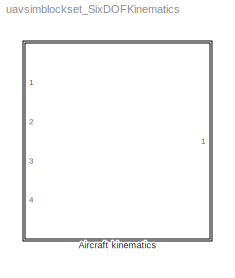
MODEL uavsimblockset_SixDOFKinematics
KIND library
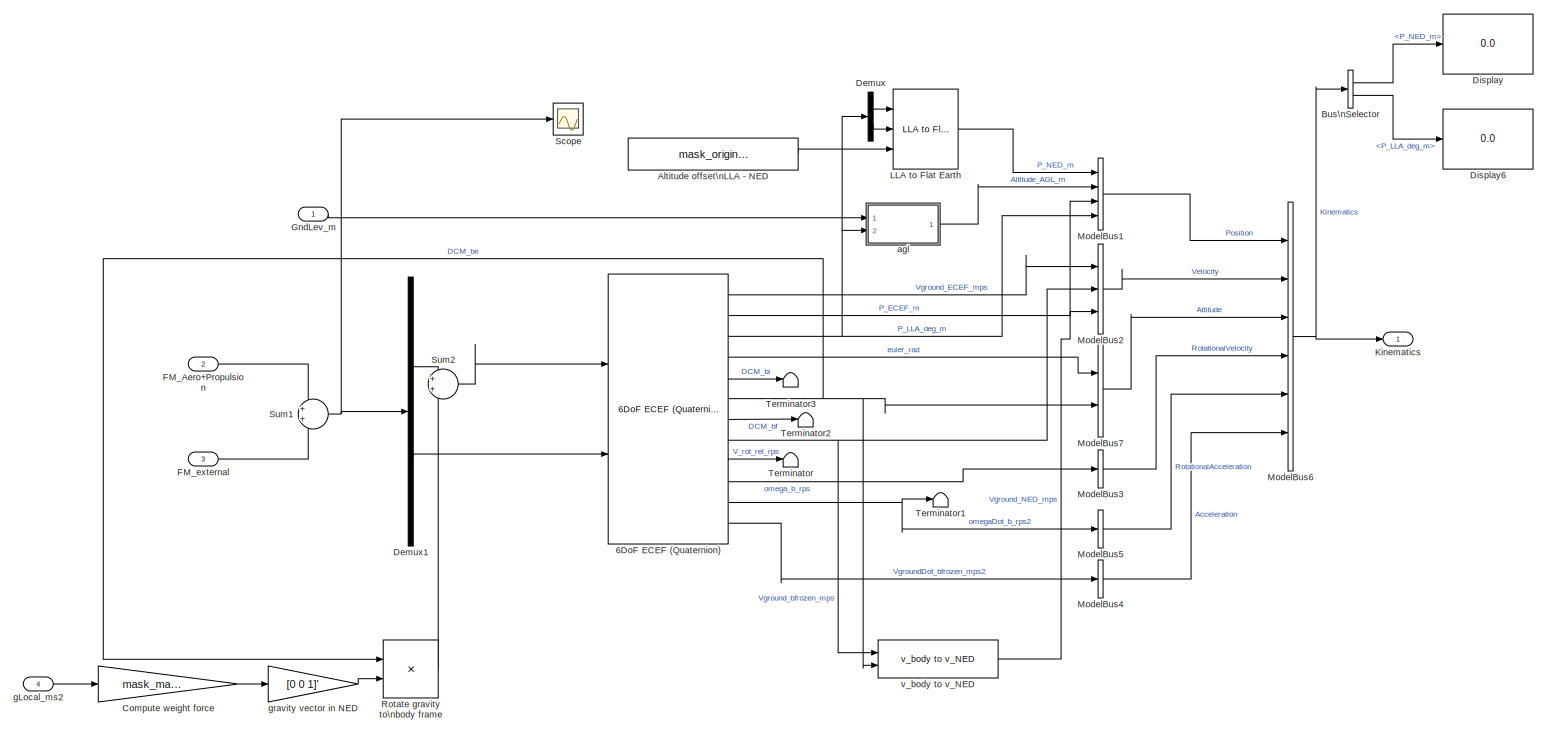
[diagram: Aircraft kinematics - part 1/1, most of the canvas]
BLOCK [SubSystem] Aircraft kinematics
  Ports = [4, 1]
  RequestExecContextInheritance = off
  SID = 3348
BLOCK [Reference] Aircraft kinematics/6DoF ECEF (Quaternion)  REF=aerolibobsolete/6DoF ECEF (Quaternion)
  F = 1/298.257223563
  LG0 = 0
  Ports = [2, 12]
  R = 6378137
  SID = 3348:3381
  SourceBlock = aerolibobsolete/6DoF ECEF (Quaternion)
  SourceType = 6DoF EoM (ECEF)
  Vm_0 = mask_uvw0
  angle_in = Internal
  eul_0 = mask_phithetapsi0
  inertia = mask_inertia
  inertia_e = eye(3)
  inertia_f = 2*eye(3)
  mass_0 = mask_mass
  mass_e = 0.5
  mass_f = 2.0
  mtype = Fixed
  pm_0 = mask_omega0
  ptype = Earth (WGS84)
  units = Metric (MKS)
  w_E = 7292115e-11
  xg_0 = fflib_rrm2degdegm(mask_P0_ECEF_rrm)
BLOCK [Constant] Aircraft kinematics/Altitude offset\nLLA - NED
  SID = 3348:3382
  Value = mask_originNED_ECEF_rrm(3)
BLOCK [BusSelector] Aircraft kinematics/Bus\nSelector
  OutputSignals = Position.P_NED_m,Position.P_LLA_deg_m
  Ports = [1, 2]
  SID = 3348:4323
BLOCK [Gain] Aircraft kinematics/Compute weight force
  Gain = mask_mass
  OutDataTypeStr = Inherit: Inherit via internal rule
  ParamDataTypeStr = Inherit: Inherit via internal rule
  SID = 3348:3383
  SaturateOnIntegerOverflow = off
BLOCK [Demux] Aircraft kinematics/Demux
  DisplayOption = bar
  Outputs = [2 1]
  Ports = [1, 2]
  SID = 3348:3387
BLOCK [Demux] Aircraft kinematics/Demux1
  Outputs = [3,3]
  Ports = [1, 2]
  SID = 3348:3388
BLOCK [Display] Aircraft kinematics/Display
  Decimation = 1
  Ports = [1]
  SID = 3348:4324
BLOCK [Display] Aircraft kinematics/Display6
  Decimation = 1
  Ports = [1]
  SID = 3348:4325
BLOCK [Inport] Aircraft kinematics/FM_Aero+Propulsion
  IconDisplay = Port number
  Port = 2
  SID = 3348:3378
BLOCK [Inport] Aircraft kinematics/FM_external
  IconDisplay = Port number
  Port = 3
  SID = 3348:3379
BLOCK [Inport] Aircraft kinematics/GndLev_m
  IconDisplay = Port number
  SID = 3348:3377
BLOCK [Outport] Aircraft kinematics/Kinematics
  IconDisplay = Port number
  OutDataTypeStr = Bus: Kinematics
  SID = 3348:3407
BLOCK [Reference] Aircraft kinematics/LLA to Flat Earth  REF=aerolibtransform2/LLA to Flat Earth
  F = 1/298.257223563
  LL0 = rad2deg(mask_originNED_ECEF_rrm(1:2))
  Ports = [3, 1]
  R = 6378137
  SID = 3348:3389
  SourceBlock = aerolibtransform2/LLA to Flat Earth
  SourceType = LLA to Flat Earth
  psi = 0
  ptype = Earth (WGS84)
  units = Metric (MKS)
BLOCK [BusCreator] Aircraft kinematics/ModelBus1
  DisplayOption = bar
  OutDataTypeStr = Bus: Position
  Ports = [4, 1]
  SID = 3348:3390
BLOCK [BusCreator] Aircraft kinematics/ModelBus2
  DisplayOption = bar
  Inputs = 3
  OutDataTypeStr = Bus: Velocity
  Ports = [3, 1]
  SID = 3348:3391
BLOCK [BusCreator] Aircraft kinematics/ModelBus3
  DisplayOption = bar
  Inputs = 1
  OutDataTypeStr = Bus: RotationalVelocity
  Ports = [1, 1]
  SID = 3348:3392
BLOCK [BusCreator] Aircraft kinematics/ModelBus4
  DisplayOption = bar
  Inputs = 1
  OutDataTypeStr = Bus: Acceleration
  Ports = [1, 1]
  SID = 3348:3393
BLOCK [BusCreator] Aircraft kinematics/ModelBus5
  DisplayOption = bar
  Inputs = 1
  OutDataTypeStr = Bus: RotationalAcceleration
  Ports = [1, 1]
  SID = 3348:3394
BLOCK [BusCreator] Aircraft kinematics/ModelBus6
  DisplayOption = bar
  Inputs = 6
  NonVirtualBus = on
  OutDataTypeStr = Bus: Kinematics
  Ports = [6, 1]
  SID = 3348:3395
BLOCK [BusCreator] Aircraft kinematics/ModelBus7
  DisplayOption = bar
  Inputs = 2
  OutDataTypeStr = Bus: Attitude
  Ports = [2, 1]
  SID = 3348:3396
BLOCK [Product] Aircraft kinematics/Rotate gravity to\nbody frame
  InputSameDT = off
  Multiplication = Matrix(*)
  OutDataTypeStr = Inherit: Inherit via internal rule
  Ports = [2, 1]
  RndMeth = Floor
  SID = 3348:3397
  SaturateOnIntegerOverflow = off
BLOCK [Scope] Aircraft kinematics/Scope
  Floating = off
  NumInputPorts = 1
  Ports = [1]
  SID = 3348:4477
  SaveName = ScopeData1
  ShowLegends = off
BLOCK [Sum] Aircraft kinematics/Sum1
  IconShape = round
  Ports = [2, 1]
  SID = 3348:3398
BLOCK [Sum] Aircraft kinematics/Sum2
  IconShape = round
  Ports = [2, 1]
  SID = 3348:3399
BLOCK [Terminator] Aircraft kinematics/Terminator
  SID = 3348:3400
BLOCK [Terminator] Aircraft kinematics/Terminator1
  SID = 3348:4248
BLOCK [Terminator] Aircraft kinematics/Terminator2
  SID = 3348:4440
BLOCK [Terminator] Aircraft kinematics/Terminator3
  SID = 3348:3403
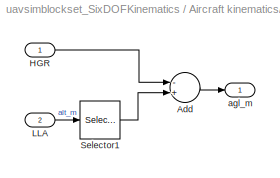
BLOCK [SubSystem] Aircraft kinematics/agl
  Ports = [2, 1]
  RequestExecContextInheritance = off
  SID = 3348:3885
BLOCK [Sum] Aircraft kinematics/agl/Add
  InputSameDT = off
  Inputs = -+
  OutDataTypeStr = Inherit: Inherit via internal rule
  Ports = [2, 1]
  SID = 3348:3888
  SaturateOnIntegerOverflow = off
BLOCK [Inport] Aircraft kinematics/agl/HGR
  IconDisplay = Port number
  SID = 3348:3886
BLOCK [Inport] Aircraft kinematics/agl/LLA
  IconDisplay = Port number
  Port = 2
  SID = 3348:3887
BLOCK [Selector] Aircraft kinematics/agl/Selector1
  Indices = [3]
  InputPortWidth = 3
  Ports = [1, 1]
  SID = 3348:3889
BLOCK [Outport] Aircraft kinematics/agl/agl_m
  IconDisplay = Port number
  SID = 3348:3890
BLOCK [Inport] Aircraft kinematics/gLocal_ms2
  IconDisplay = Port number
  Port = 4
  SID = 3348:3380
BLOCK [Gain] Aircraft kinematics/gravity vector in NED
  Gain = [0 0 1]'
  OutDataTypeStr = Inherit: Inherit via internal rule
  ParamDataTypeStr = Inherit: Inherit via internal rule
  SID = 3348:3405
  SaturateOnIntegerOverflow = off
BLOCK [Reference] Aircraft kinematics/v_body to v_NED  REF=uavsimblockset_vbody2vNED/v_body to v_NED
  Ports = [2, 1]
  SID = 3348:3406
  SourceBlock = uavsimblockset_vbody2vNED/v_body to v_NED
  SourceType = SubSystem
LINE Aircraft kinematics/6DoF ECEF (Quaternion):1 -> Aircraft kinematics/ModelBus2:1
LINE Aircraft kinematics/6DoF ECEF (Quaternion):10 -> Aircraft kinematics/ModelBus3:1
NET Aircraft kinematics/6DoF ECEF (Quaternion):11 -> Aircraft kinematics/ModelBus5:1, Aircraft kinematics/Terminator1:1
LINE Aircraft kinematics/6DoF ECEF (Quaternion):12 -> Aircraft kinematics/ModelBus4:1
LINE Aircraft kinematics/6DoF ECEF (Quaternion):2 -> Aircraft kinematics/ModelBus1:3
NET Aircraft kinematics/6DoF ECEF (Quaternion):3 -> Aircraft kinematics/Demux:1, Aircraft kinematics/ModelBus1:4, Aircraft kinematics/agl:2
LINE Aircraft kinematics/6DoF ECEF (Quaternion):4 -> Aircraft kinematics/ModelBus7:1
LINE Aircraft kinematics/6DoF ECEF (Quaternion):5 -> Aircraft kinematics/Terminator3:1
NET Aircraft kinematics/6DoF ECEF (Quaternion):6 -> Aircraft kinematics/ModelBus7:2, Aircraft kinematics/Rotate gravity to\nbody frame:1, Aircraft kinematics/v_body to v_NED:2
LINE Aircraft kinematics/6DoF ECEF (Quaternion):7 -> Aircraft kinematics/Terminator2:1
NET Aircraft kinematics/6DoF ECEF (Quaternion):8 -> Aircraft kinematics/ModelBus2:2, Aircraft kinematics/v_body to v_NED:1
LINE Aircraft kinematics/6DoF ECEF (Quaternion):9 -> Aircraft kinematics/Terminator:1
LINE Aircraft kinematics/Altitude offset\nLLA - NED:1 -> Aircraft kinematics/LLA to Flat Earth:3
LINE Aircraft kinematics/Bus\nSelector:1 -> Aircraft kinematics/Display:1
LINE Aircraft kinematics/Bus\nSelector:2 -> Aircraft kinematics/Display6:1
LINE Aircraft kinematics/Compute weight force:1 -> Aircraft kinematics/gravity vector in NED:1
LINE Aircraft kinematics/Demux1:1 -> Aircraft kinematics/Sum2:1
LINE Aircraft kinematics/Demux1:2 -> Aircraft kinematics/6DoF ECEF (Quaternion):2
LINE Aircraft kinematics/Demux:1 -> Aircraft kinematics/LLA to Flat Earth:1
LINE Aircraft kinematics/Demux:2 -> Aircraft kinematics/LLA to Flat Earth:2
LINE Aircraft kinematics/FM_Aero+Propulsion:1 -> Aircraft kinematics/Sum1:1
LINE Aircraft kinematics/FM_external:1 -> Aircraft kinematics/Sum1:2
LINE Aircraft kinematics/GndLev_m:1 -> Aircraft kinematics/agl:1
LINE Aircraft kinematics/LLA to Flat Earth:1 -> Aircraft kinematics/ModelBus1:1
LINE Aircraft kinematics/ModelBus1:1 -> Aircraft kinematics/ModelBus6:1
LINE Aircraft kinematics/ModelBus2:1 -> Aircraft kinematics/ModelBus6:2
LINE Aircraft kinematics/ModelBus3:1 -> Aircraft kinematics/ModelBus6:4
LINE Aircraft kinematics/ModelBus4:1 -> Aircraft kinematics/ModelBus6:6
LINE Aircraft kinematics/ModelBus5:1 -> Aircraft kinematics/ModelBus6:5
NET Aircraft kinematics/ModelBus6:1 -> Aircraft kinematics/Bus\nSelector:1, Aircraft kinematics/Kinematics:1
LINE Aircraft kinematics/ModelBus7:1 -> Aircraft kinematics/ModelBus6:3
LINE Aircraft kinematics/Rotate gravity to\nbody frame:1 -> Aircraft kinematics/Sum2:2
NET Aircraft kinematics/Sum1:1 -> Aircraft kinematics/Demux1:1, Aircraft kinematics/Scope:1
LINE Aircraft kinematics/Sum2:1 -> Aircraft kinematics/6DoF ECEF (Quaternion):1
LINE Aircraft kinematics/agl/Add:1 -> Aircraft kinematics/agl/agl_m:1
LINE Aircraft kinematics/agl/HGR:1 -> Aircraft kinematics/agl/Add:1
LINE Aircraft kinematics/agl/LLA:1 -> Aircraft kinematics/agl/Selector1:1
LINE Aircraft kinematics/agl/Selector1:1 -> Aircraft kinematics/agl/Add:2
LINE Aircraft kinematics/agl:1 -> Aircraft kinematics/ModelBus1:2
LINE Aircraft kinematics/gLocal_ms2:1 -> Aircraft kinematics/Compute weight force:1
LINE Aircraft kinematics/gravity vector in NED:1 -> Aircraft kinematics/Rotate gravity to\nbody frame:2
LINE Aircraft kinematics/v_body to v_NED:1 -> Aircraft kinematics/ModelBus2:3
note: NET lines group one-source signal fan-out (src -> all destinations, sorted); 1:1 wires keep LINE
